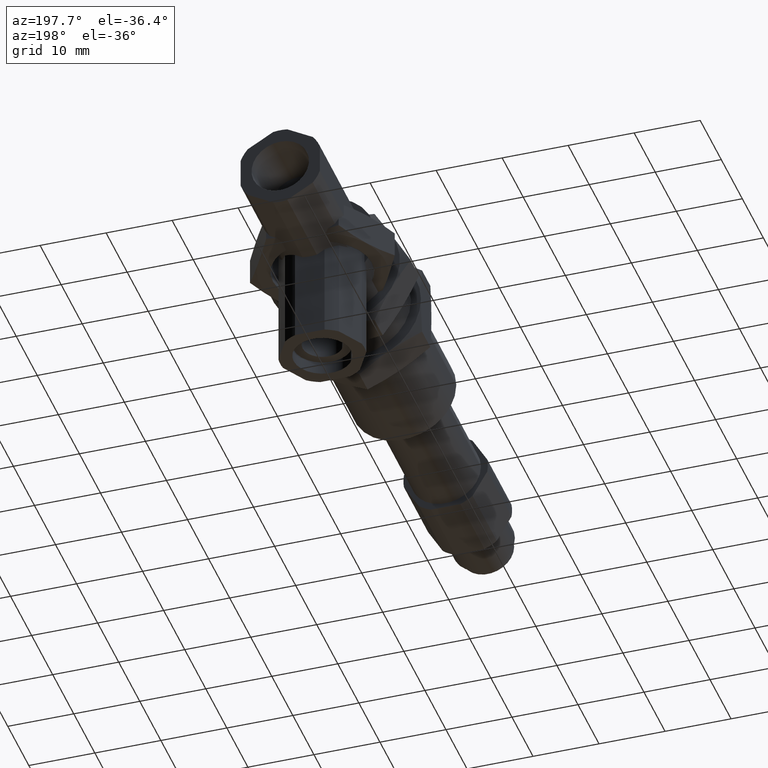
[diagram: clean part render]
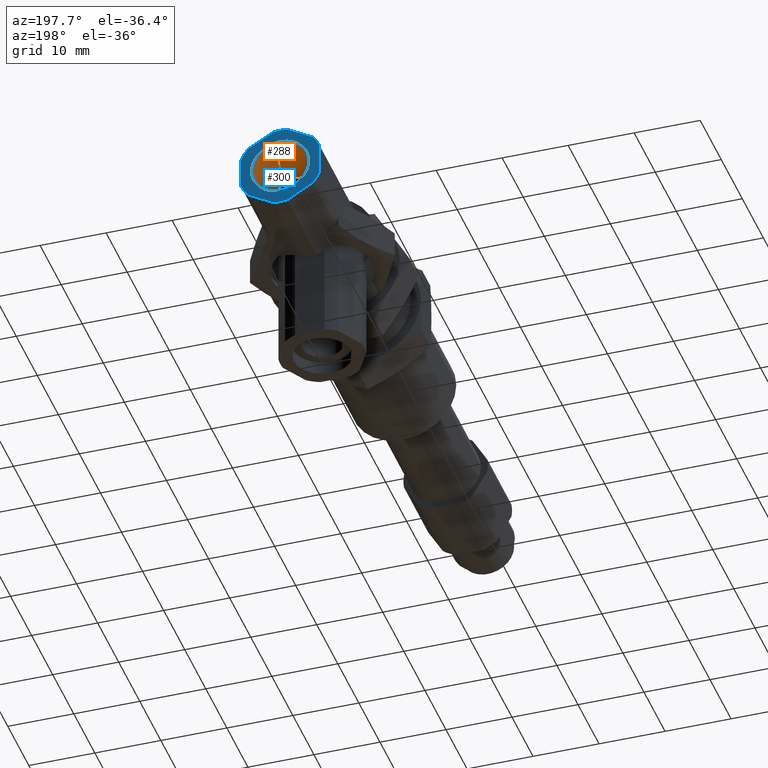
[diagram: same view with the hole feature highlighted: cylindrical wall and planar end face, labeled with their STEP entity ids]
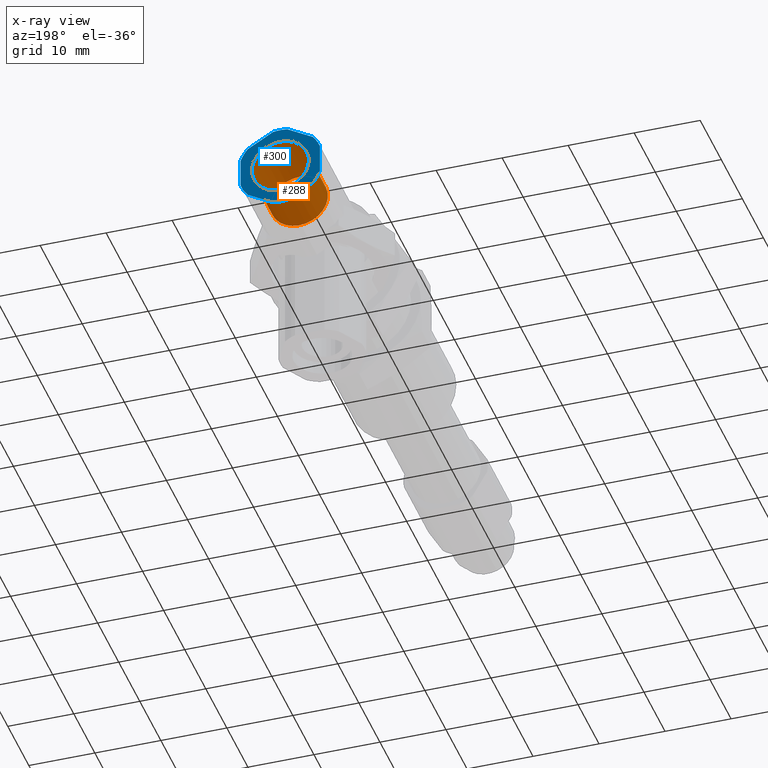
[diagram: x-ray of the same camera — body ghosted, the hole faces saturated]
A machine part, auxiliary view. The highlighted faces form one hole feature of diameter 8.7 mm: the cylindrical wall (entity #288, orange) and its adjacent planar end face (entity #300, blue) — they share a circular edge in the B-rep.
The next image is the same camera in x-ray (body ghosted, the hole faces saturated) — the bore reads through the body.
Wall:
#288 = ADVANCED_FACE( 'NONE', ( #456, #457 ), #458, .F. );
#456 = FACE_OUTER_BOUND( '', #613, .T. );
#457 = FACE_OUTER_BOUND( '', #614, .T. );
#458 = CYLINDRICAL_SURFACE( '', #615, 4.35000000000000 );
#613 = EDGE_LOOP( '', ( #988 ) );
#614 = EDGE_LOOP( '', ( #989 ) );
#615 = AXIS2_PLACEMENT_3D( '', #990, #991, #992 );
#988 = ORIENTED_EDGE( '', *, *, #1233, .T. );
#989 = ORIENTED_EDGE( '', *, *, #1234, .F. );
#990 = CARTESIAN_POINT( '', ( 0.000000000000000, 0.000000000000000, -11.0000000000000 ) );
#991 = DIRECTION( '', ( -0.000000000000000, -0.000000000000000, 1.00000000000000 ) );
#992 = DIRECTION( '', ( -1.00000000000000, 0.000000000000000, 0.000000000000000 ) );
#1233 = EDGE_CURVE( 'NONE', #1447, #1447, #1448, .T. );
#1234 = EDGE_CURVE( 'NONE', #1449, #1449, #1450, .T. );
#1447 = VERTEX_POINT( '', #1815 );
#1448 = CIRCLE( '', #1816, 4.35000000000000 );
#1449 = VERTEX_POINT( '', #1817 );
#1450 = CIRCLE( '', #1818, 4.35000000000000 );
#1815 = CARTESIAN_POINT( '', ( -4.35000000000000, 0.000000000000000, -20.0000000000000 ) );
#1816 = AXIS2_PLACEMENT_3D( '', #2045, #2046, #2047 );
#1817 = CARTESIAN_POINT( '', ( -4.35000000000000, 0.000000000000000, -11.0000000000000 ) );
#1818 = AXIS2_PLACEMENT_3D( '', #2048, #2049, #2050 );
#2045 = CARTESIAN_POINT( '', ( 0.000000000000000, 0.000000000000000, -20.0000000000000 ) );
#2046 = DIRECTION( '', ( 0.000000000000000, 0.000000000000000, -1.00000000000000 ) );
#2047 = DIRECTION( '', ( -1.00000000000000, 0.000000000000000, 0.000000000000000 ) );
#2048 = CARTESIAN_POINT( '', ( 0.000000000000000, 0.000000000000000, -11.0000000000000 ) );
#2049 = DIRECTION( '', ( 0.000000000000000, 0.000000000000000, -1.00000000000000 ) );
#2050 = DIRECTION( '', ( -1.00000000000000, 0.000000000000000, 0.000000000000000 ) );
End face:
#300 = ADVANCED_FACE( 'NONE', ( #484, #485 ), #486, .F. );
#484 = FACE_OUTER_BOUND( '', #641, .T. );
#485 = FACE_BOUND( '', #642, .T. );
#486 = PLANE( '', #643 );
#641 = EDGE_LOOP( '', ( #1075, #1076, #1077, #1078, #1079, #1080, #1081, #1082, #1083, #1084, #1085, #1086 ) );
#642 = EDGE_LOOP( '', ( #1087 ) );
#643 = AXIS2_PLACEMENT_3D( '', #1088, #1089, #1090 );
#1075 = ORIENTED_EDGE( '', *, *, #1258, .F. );
#1076 = ORIENTED_EDGE( '', *, *, #1263, .F. );
#1077 = ORIENTED_EDGE( '', *, *, #1262, .F. );
#1078 = ORIENTED_EDGE( '', *, *, #1254, .F. );
#1079 = ORIENTED_EDGE( '', *, *, #1241, .F. );
#1080 = ORIENTED_EDGE( '', *, *, #1238, .F. );
#1081 = ORIENTED_EDGE( '', *, *, #1267, .F. );
#1082 = ORIENTED_EDGE( '', *, *, #1268, .F. );
#1083 = ORIENTED_EDGE( '', *, *, #1269, .F. );
#1084 = ORIENTED_EDGE( '', *, *, #1266, .F. );
#1085 = ORIENTED_EDGE( '', *, *, #1270, .F. );
#1086 = ORIENTED_EDGE( '', *, *, #1259, .F. );
#1087 = ORIENTED_EDGE( '', *, *, #1233, .F. );
#1088 = CARTESIAN_POINT( '', ( 10.3923048454132, 6.00000000000000, -20.0000000000000 ) );
#1089 = DIRECTION( '', ( 0.000000000000000, 0.000000000000000, 1.00000000000000 ) );
#1090 = DIRECTION( '', ( 1.00000000000000, 0.000000000000000, 0.000000000000000 ) );
#1233 = EDGE_CURVE( 'NONE', #1447, #1447, #1448, .T. );
#1238 = EDGE_CURVE( 'NONE', #1456, #1451, #1458, .T. );
#1241 = EDGE_CURVE( 'NONE', #1451, #1460, #1463, .T. );
#1254 = EDGE_CURVE( 'NONE', #1460, #1485, #1487, .T. );
#1258 = EDGE_CURVE( 'NONE', #1492, #1490, #1494, .T. );
#1259 = EDGE_CURVE( 'NONE', #1490, #1495, #1496, .T. );
#1262 = EDGE_CURVE( 'NONE', #1485, #1498, #1500, .T. );
#1263 = EDGE_CURVE( 'NONE', #1498, #1492, #1501, .T. );
#1266 = EDGE_CURVE( 'NONE', #1504, #1502, #1506, .T. );
#1267 = EDGE_CURVE( 'NONE', #1507, #1456, #1508, .T. );
#1268 = EDGE_CURVE( 'NONE', #1509, #1507, #1510, .T. );
#1269 = EDGE_CURVE( 'NONE', #1502, #1509, #1511, .T. );
#1270 = EDGE_CURVE( 'NONE', #1495, #1504, #1512, .T. );
#1447 = VERTEX_POINT( '', #1815 );
#1448 = CIRCLE( '', #1816, 4.35000000000000 );
#1451 = VERTEX_POINT( 'NONE', #1819 );
#1456 = VERTEX_POINT( 'NONE', #1825 );
#1458 = CIRCLE( '', #1828, 6.40000000000000 );
#1460 = VERTEX_POINT( 'NONE', #1830 );
#1463 = LINE( '', #1835, #1836 );
#1485 = VERTEX_POINT( 'NONE', #1863 );
#1487 = CIRCLE( '', #1866, 6.40000000000000 );
#1490 = VERTEX_POINT( 'NONE', #1869 );
#1492 = VERTEX_POINT( 'NONE', #1872 );
#1494 = LINE( '', #1875, #1876 );
#1495 = VERTEX_POINT( 'NONE', #1877 );
#1496 = CIRCLE( '', #1878, 6.40000000000000 );
#1498 = VERTEX_POINT( 'NONE', #1881 );
#1500 = LINE( '', #1884, #1885 );
#1501 = CIRCLE( '', #1886, 6.40000000000000 );
#1502 = VERTEX_POINT( 'NONE', #1887 );
#1504 = VERTEX_POINT( 'NONE', #1890 );
#1506 = CIRCLE( '', #1893, 6.40000000000000 );
#1507 = VERTEX_POINT( 'NONE', #1894 );
#1508 = LINE( '', #1895, #1896 );
#1509 = VERTEX_POINT( 'NONE', #1897 );
#1510 = CIRCLE( '', #1898, 6.40000000000000 );
#1511 = LINE( '', #1899, #1900 );
#1512 = LINE( '', #1901, #1902 );
#1815 = CARTESIAN_POINT( '', ( -4.35000000000000, 0.000000000000000, -20.0000000000000 ) );
#1816 = AXIS2_PLACEMENT_3D( '', #2045, #2046, #2047 );
#1819 = CARTESIAN_POINT( '', ( -6.30970529527264, -1.07126984780140, -20.0000000000000 ) );
#1825 = CARTESIAN_POINT( '', ( -6.30970529527264, 1.07126984780139, -20.0000000000000 ) );
#1828 = AXIS2_PLACEMENT_3D( '', #2056, #2057, #2058 );
#1830 = CARTESIAN_POINT( '', ( -4.08259955014061, -4.92873015219860, -20.0000000000000 ) );
#1835 = CARTESIAN_POINT( '', ( -6.92820323027551, -3.45852149538747E-015, -20.0000000000000 ) );
#1836 = VECTOR( '', #2061, 999.999999999999 );
#1863 = CARTESIAN_POINT( '', ( -2.22710574513201, -6.00000000000000, -20.0000000000000 ) );
#1866 = AXIS2_PLACEMENT_3D( '', #2086, #2087, #2088 );
#1869 = CARTESIAN_POINT( '', ( 6.30970529527264, -1.07126984780140, -20.0000000000000 ) );
#1872 = CARTESIAN_POINT( '', ( 4.08259955014063, -4.92873015219859, -20.0000000000000 ) );
#1875 = CARTESIAN_POINT( '', ( 3.46410161513775, -6.00000000000000, -20.0000000000000 ) );
#1876 = VECTOR( '', #2094, 1000.00000000000 );
#1877 = CARTESIAN_POINT( '', ( 6.30970529527264, 1.07126984780141, -20.0000000000000 ) );
#1878 = AXIS2_PLACEMENT_3D( '', #2095, #2096, #2097 );
#1881 = CARTESIAN_POINT( '', ( 2.22710574513201, -6.00000000000000, -20.0000000000000 ) );
#1884 = CARTESIAN_POINT( '', ( -3.46410161513774, -6.00000000000000, -20.0000000000000 ) );
#1885 = VECTOR( '', #2100, 1000.00000000000 );
#1886 = AXIS2_PLACEMENT_3D( '', #2101, #2102, #2103 );
#1887 = CARTESIAN_POINT( '', ( 2.22710574513201, 6.00000000000000, -20.0000000000000 ) );
#1890 = CARTESIAN_POINT( '', ( 4.08259955014062, 4.92873015219859, -20.0000000000000 ) );
#1893 = AXIS2_PLACEMENT_3D( '', #2106, #2107, #2108 );
#1894 = CARTESIAN_POINT( '', ( -4.08259955014062, 4.92873015219860, -20.0000000000000 ) );
#1895 = CARTESIAN_POINT( '', ( -3.46410161513775, 6.00000000000000, -20.0000000000000 ) );
#1896 = VECTOR( '', #2109, 1000.00000000000 );
#1897 = CARTESIAN_POINT( '', ( -2.22710574513201, 6.00000000000000, -20.0000000000000 ) );
#1898 = AXIS2_PLACEMENT_3D( '', #2110, #2111, #2112 );
#1899 = CARTESIAN_POINT( '', ( 3.46410161513775, 6.00000000000000, -20.0000000000000 ) );
#1900 = VECTOR( '', #2113, 1000.00000000000 );
#1901 = CARTESIAN_POINT( '', ( 6.92820323027551, 7.11563971917264E-015, -20.0000000000000 ) );
#1902 = VECTOR( '', #2114, 1000.00000000000 );
#2045 = CARTESIAN_POINT( '', ( 0.000000000000000, 0.000000000000000, -20.0000000000000 ) );
#2046 = DIRECTION( '', ( 0.000000000000000, 0.000000000000000, -1.00000000000000 ) );
#2047 = DIRECTION( '', ( -1.00000000000000, 0.000000000000000, 0.000000000000000 ) );
#2056 = CARTESIAN_POINT( '', ( 0.000000000000000, 0.000000000000000, -20.0000000000000 ) );
#2057 = DIRECTION( '', ( 0.000000000000000, 0.000000000000000, 1.00000000000000 ) );
#2058 = DIRECTION( '', ( 1.00000000000000, 0.000000000000000, 0.000000000000000 ) );
#2061 = DIRECTION( '', ( 0.500000000000000, -0.866025403784438, 0.000000000000000 ) );
#2086 = CARTESIAN_POINT( '', ( 0.000000000000000, 0.000000000000000, -20.0000000000000 ) );
#2087 = DIRECTION( '', ( 0.000000000000000, 0.000000000000000, 1.00000000000000 ) );
#2088 = DIRECTION( '', ( 1.00000000000000, 0.000000000000000, 0.000000000000000 ) );
#2094 = DIRECTION( '', ( 0.500000000000000, 0.866025403784439, 0.000000000000000 ) );
#2095 = CARTESIAN_POINT( '', ( 0.000000000000000, 0.000000000000000, -20.0000000000000 ) );
#2096 = DIRECTION( '', ( 0.000000000000000, 0.000000000000000, 1.00000000000000 ) );
#2097 = DIRECTION( '', ( 1.00000000000000, 0.000000000000000, 0.000000000000000 ) );
#2100 = DIRECTION( '', ( 1.00000000000000, 2.50385766456193E-016, 0.000000000000000 ) );
#2101 = CARTESIAN_POINT( '', ( 0.000000000000000, 0.000000000000000, -20.0000000000000 ) );
#2102 = DIRECTION( '', ( 0.000000000000000, 0.000000000000000, 1.00000000000000 ) );
#2103 = DIRECTION( '', ( 1.00000000000000, 0.000000000000000, 0.000000000000000 ) );
#2106 = CARTESIAN_POINT( '', ( 0.000000000000000, 0.000000000000000, -20.0000000000000 ) );
#2107 = DIRECTION( '', ( 0.000000000000000, 0.000000000000000, 1.00000000000000 ) );
#2108 = DIRECTION( '', ( 1.00000000000000, 0.000000000000000, 0.000000000000000 ) );
#2109 = DIRECTION( '', ( -0.500000000000000, -0.866025403784439, 0.000000000000000 ) );
#2110 = CARTESIAN_POINT( '', ( 0.000000000000000, 0.000000000000000, -20.0000000000000 ) );
#2111 = DIRECTION( '', ( 0.000000000000000, 0.000000000000000, 1.00000000000000 ) );
#2112 = DIRECTION( '', ( 1.00000000000000, 0.000000000000000, 0.000000000000000 ) );
#2113 = DIRECTION( '', ( -1.00000000000000, 0.000000000000000, 0.000000000000000 ) );
#2114 = DIRECTION( '', ( -0.500000000000000, 0.866025403784439, 0.000000000000000 ) );